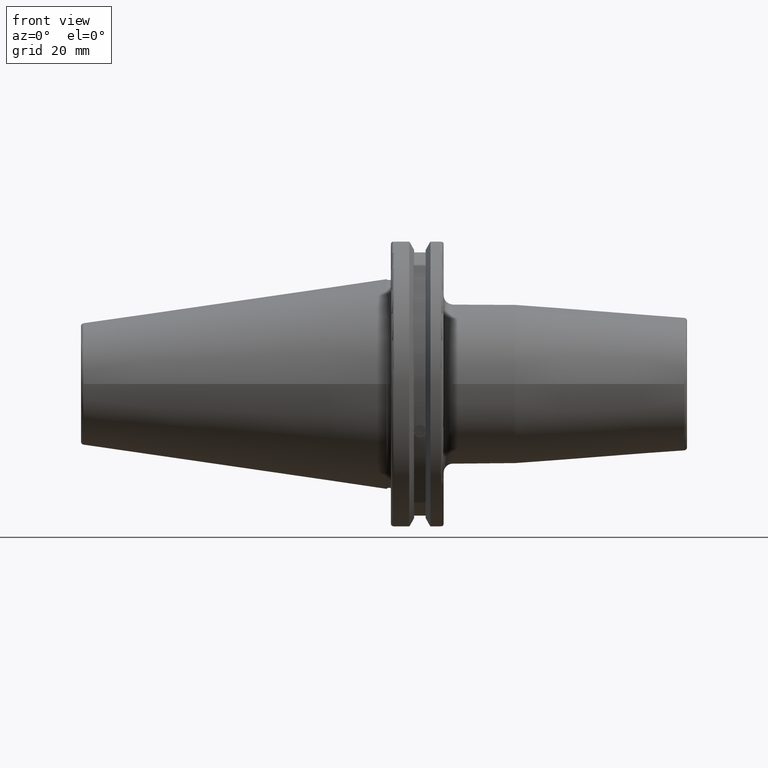
[diagram: clean part render]
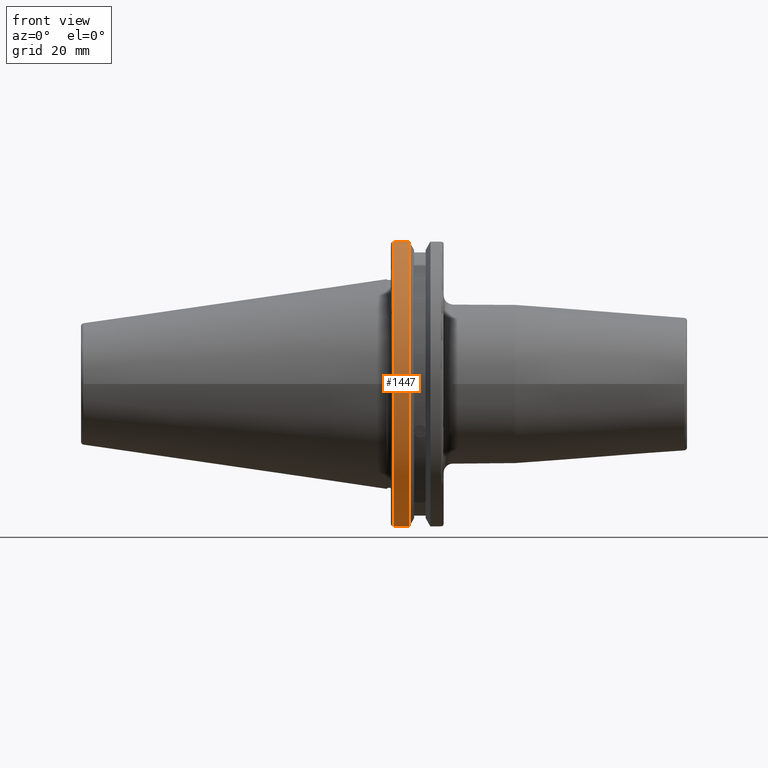
[diagram: same view with one face highlighted and labeled with its STEP entity id]
A machine part, front view. The second image highlights one B-rep face of the part: STEP entity #1447.
In plain terms, the highlighted cylindrical surface (partial cylindrical patch) has radius 49.2125 mm, axis along (1, 0, 0).
Its self-contained STEP definition (entity closure, byte-faithful):
#139=CYLINDRICAL_SURFACE('',#1609,49.2125);
#194=FACE_OUTER_BOUND('',#288,.T.);
#288=EDGE_LOOP('',(#1192,#1193,#1194,#1195));
#393=LINE('',#2616,#485);
#394=LINE('',#2622,#486);
#485=VECTOR('',#1935,10.);
#486=VECTOR('',#1938,10.);
#565=CIRCLE('',#1606,49.2125);
#567=CIRCLE('',#1610,49.2125);
#702=VERTEX_POINT('',#2594);
#703=VERTEX_POINT('',#2603);
#704=VERTEX_POINT('',#2615);
#705=VERTEX_POINT('',#2621);
#882=EDGE_CURVE('',#702,#703,#565,.T.);
#885=EDGE_CURVE('',#703,#704,#393,.T.);
#887=EDGE_CURVE('',#705,#702,#394,.T.);
#888=EDGE_CURVE('',#704,#705,#567,.T.);
#1192=ORIENTED_EDGE('',*,*,#882,.F.);
#1193=ORIENTED_EDGE('',*,*,#887,.F.);
#1194=ORIENTED_EDGE('',*,*,#888,.F.);
#1195=ORIENTED_EDGE('',*,*,#885,.F.);
#1447=ADVANCED_FACE('',(#194),#139,.T.);
#1606=AXIS2_PLACEMENT_3D('',#2604,#1929,#1930);
#1609=AXIS2_PLACEMENT_3D('',#2620,#1936,#1937);
#1610=AXIS2_PLACEMENT_3D('',#2623,#1939,#1940);
#1929=DIRECTION('center_axis',(-1.,0.,0.));
#1930=DIRECTION('ref_axis',(0.,-1.,1.60812264967664E-16));
#1935=DIRECTION('',(1.,0.,0.));
#1936=DIRECTION('center_axis',(1.,0.,0.));
#1937=DIRECTION('ref_axis',(0.,-1.,1.22464679914735E-16));
#1938=DIRECTION('',(-1.,0.,0.));
#1939=DIRECTION('center_axis',(1.,0.,0.));
#1940=DIRECTION('ref_axis',(0.,0.,-1.));
#2594=CARTESIAN_POINT('',(2.5,-13.4317035994433,-47.3440544806494));
#2603=CARTESIAN_POINT('',(2.5,-13.4317035994433,47.3440544806494));
#2604=CARTESIAN_POINT('Origin',(2.5,0.,0.));
#2615=CARTESIAN_POINT('',(7.60799096595127,-13.4317035994433,47.3440544806494));
#2616=CARTESIAN_POINT('',(4.55399548297564,-13.4317035994433,47.3440544806494));
#2620=CARTESIAN_POINT('Origin',(4.55399548297564,0.,0.));
#2621=CARTESIAN_POINT('',(7.60799096595127,-13.4317035994433,-47.3440544806494));
#2622=CARTESIAN_POINT('',(4.55399548297564,-13.4317035994433,-47.3440544806494));
#2623=CARTESIAN_POINT('Origin',(7.60799096595127,0.,0.));